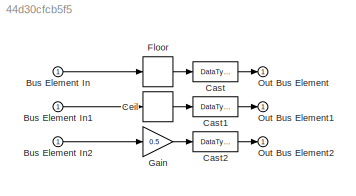
MODEL slx_44d30cfcb5f5
KIND model
CONFIG AbsTol = auto
CONFIG EnableMultiTasking = on
CONFIG FixedStep = 0.001
CONFIG MaxStep = auto
CONFIG MinStep = auto
CONFIG RelTol = 1e-3
CONFIG SampleTimeConstraint = Unconstrained
CONFIG SolverName = FixedStepAuto
CONFIG StartTime = 0.0
CONFIG StopTime = 2
BLOCK [Inport] Bus Element In
BLOCK [Inport] Bus Element In1
BLOCK [Inport] Bus Element In2
BLOCK [DataTypeConversion] Cast
  RndMeth = Floor
  SaturateOnIntegerOverflow = off
BLOCK [DataTypeConversion] Cast1
  RndMeth = Floor
  SaturateOnIntegerOverflow = off
BLOCK [DataTypeConversion] Cast2
  RndMeth = Floor
  SaturateOnIntegerOverflow = off
BLOCK [Rounding] Ceil
  Operator = ceil
BLOCK [Rounding] Floor
BLOCK [Gain] Gain
  Gain = 0.5
BLOCK [Outport] Out Bus Element
BLOCK [Outport] Out Bus Element1
BLOCK [Outport] Out Bus Element2
LINE Bus Element In1:1 -> Ceil:1
LINE Bus Element In2:1 -> Gain:1
LINE Bus Element In:1 -> Floor:1
LINE Cast1:1 -> Out Bus Element1:1
LINE Cast2:1 -> Out Bus Element2:1
LINE Cast:1 -> Out Bus Element:1
LINE Ceil:1 -> Cast1:1
LINE Floor:1 -> Cast:1
LINE Gain:1 -> Cast2:1
